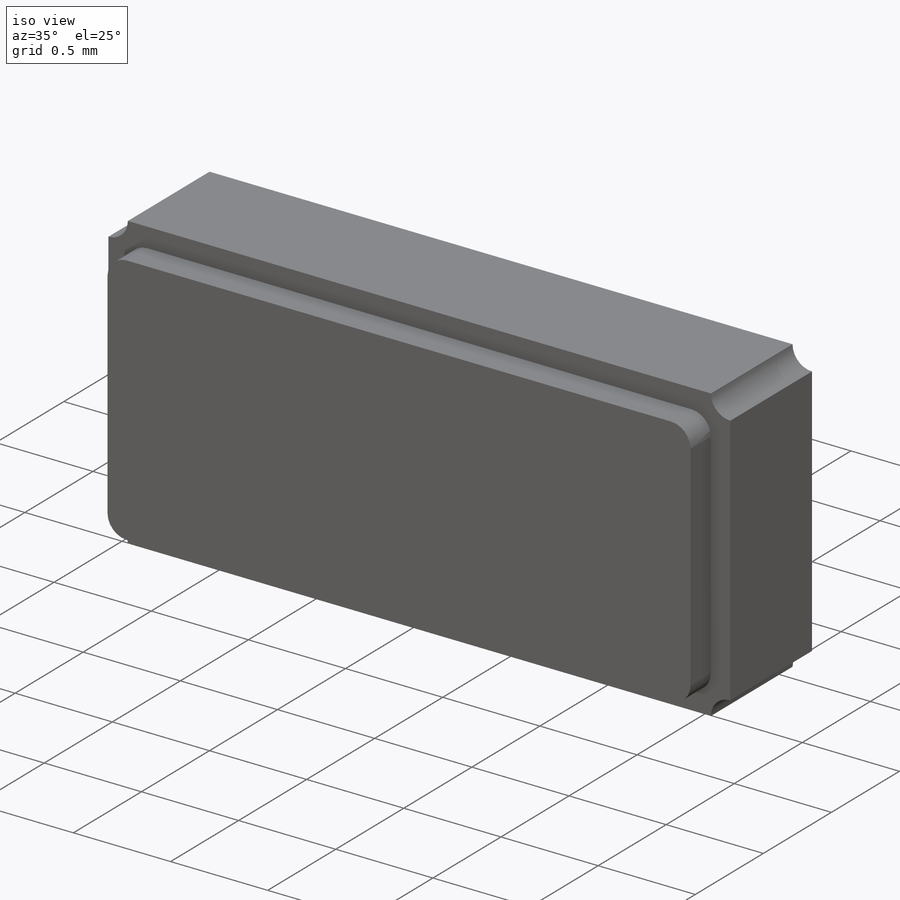
[diagram: iso view]
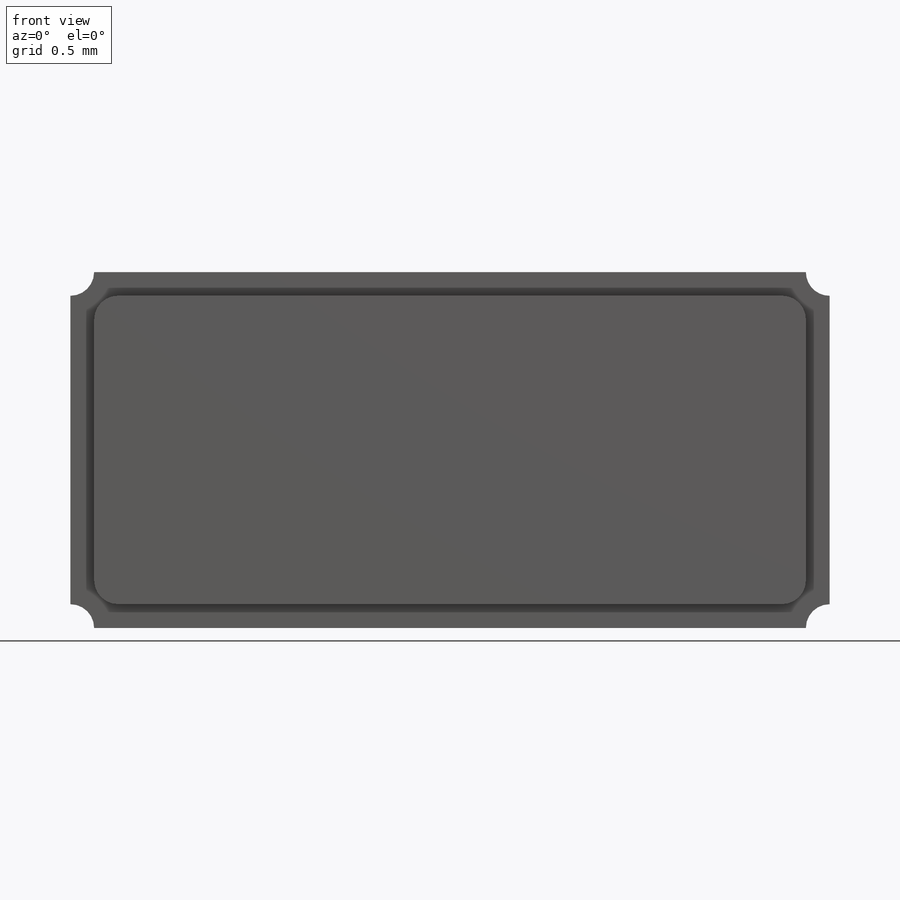
[diagram: front view]
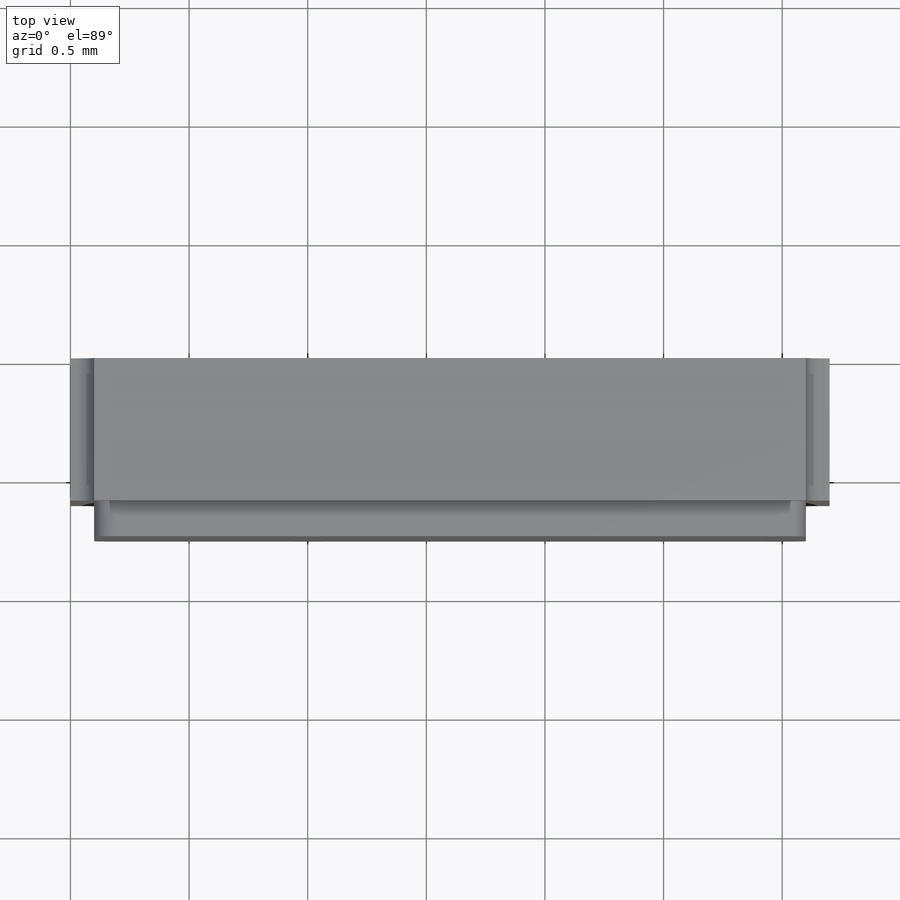
[diagram: top view]
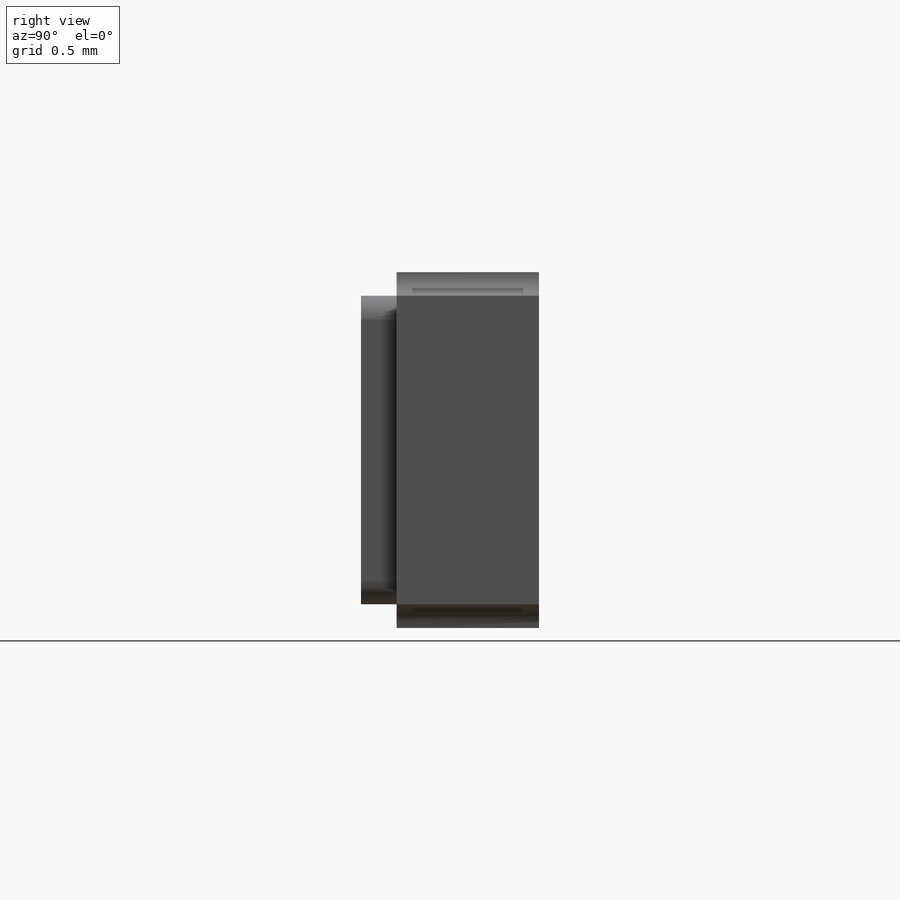
[diagram: right view]
SOLIDWORKS PART (.sldprt)
format: sldprt  version: not decoded by parser v0  size: 179,712 bytes
history: native  units: mm
features: sketch x2, extrude x2, material x1, fillet x1 (+13 scaffold rows collapsed)
feature tree (19):
  scaffold x13  (default folders/planes/origin — collapsed)
  material  "Material <not specified>"
  sketch  "Sketch1"  dims[c1.D3=~0.100003mm c1.D6=0.1mm c1.D5=~0.099997mm c1.D1=1.5mm c1.D2=3.2mm c2.D1=1.5mm c2.D4=1.3mm c2.D5=3.0mm c2.D2=~3.200003mm]
  extrude  "Boss-Extrude1"  Depth=0.6mm
  sketch  "Sketch2"  dims[D1=3.0mm D2=1.3mm]
  extrude  "Boss-Extrude2"  Depth=0.15mm
  fillet  "Fillet1"  Radius=0.1mm
decode coverage: 5 of 5 modeling features carry decoded parameters
note: ~ marks probable driven/reference dimensions
note: suppression state not decoded; provenance and decode notes live in map.json
